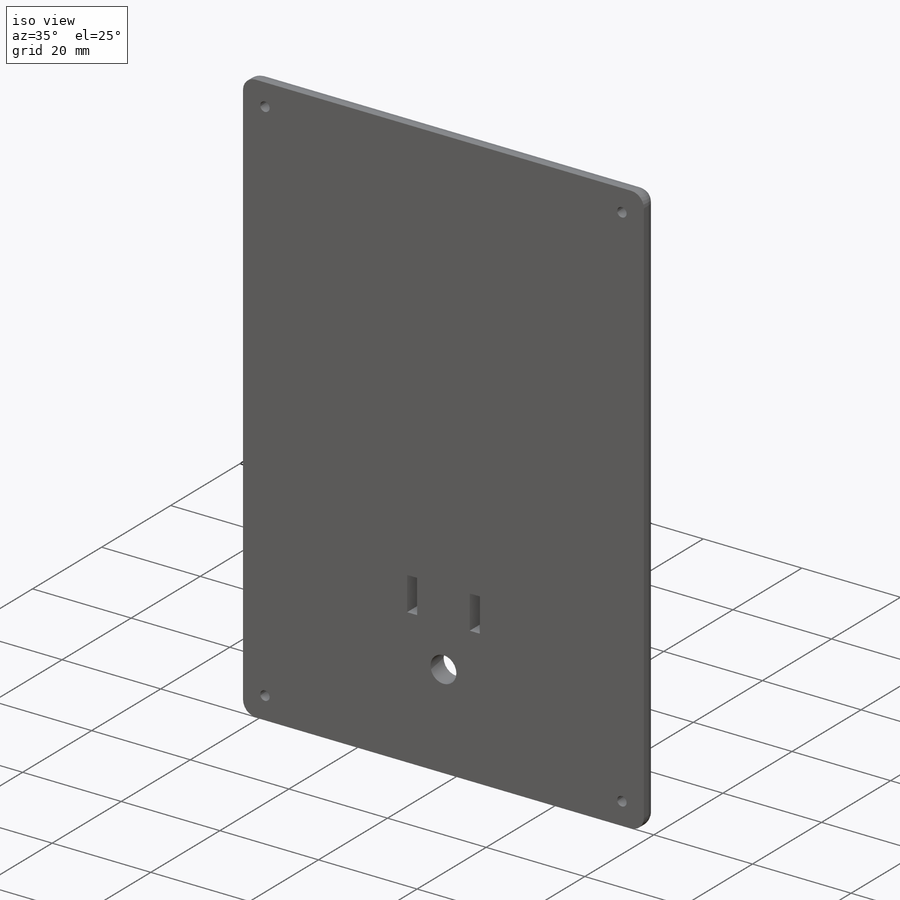
[diagram: iso view]
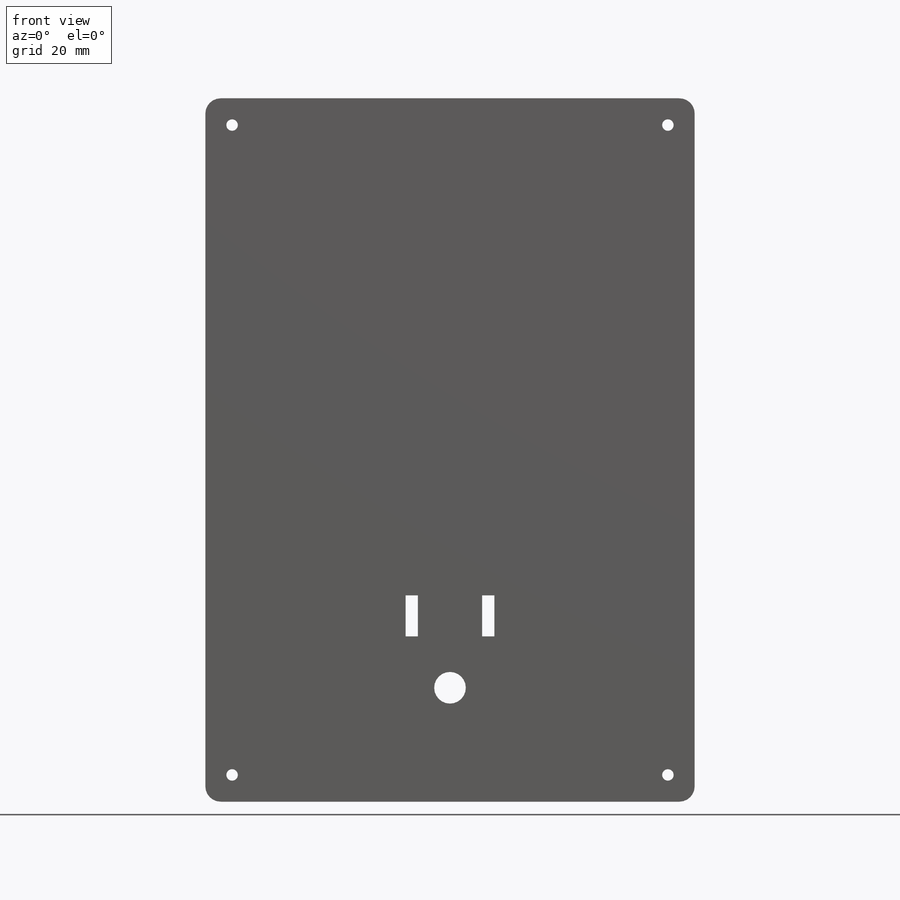
[diagram: front view]
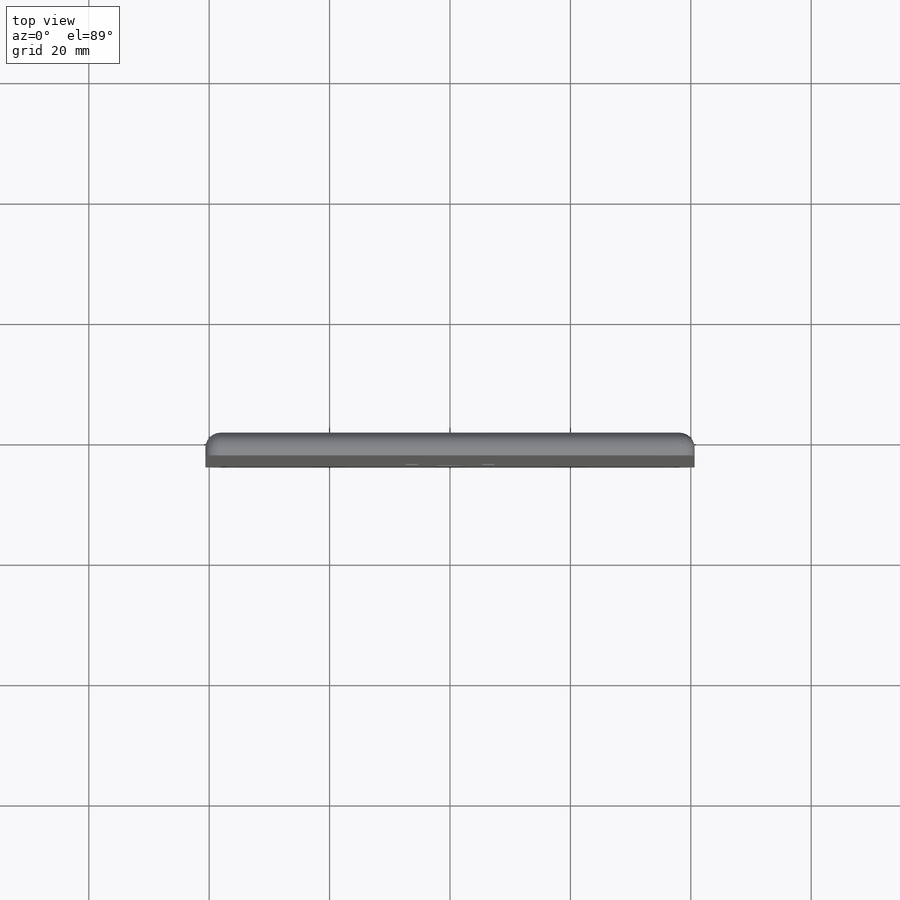
[diagram: top view]
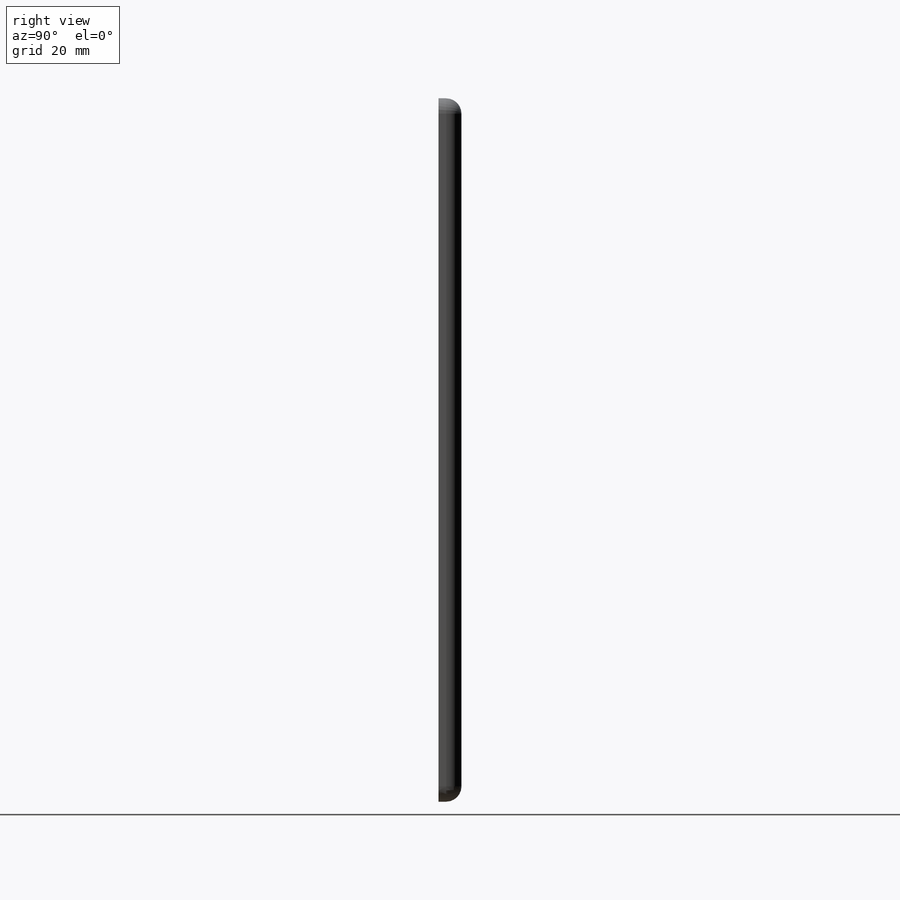
[diagram: right view]
SOLIDWORKS PART (.sldprt)
format: sldprt  version: not decoded by parser v0  size: 398,848 bytes
history: native  units: mm
features: sketch x5, cut_extrude x4, material x1, extrude x1, fillet x1, chamfer x1, plane x1 (+12 scaffold rows collapsed)
feature tree (26):
  scaffold x12  (default folders/planes/origin — collapsed)
  material  "Material <not specified>"
  sketch  "Sketch1"  dims[D1=81.28mm D2=116.84mm D3=10.16mm D4=10.16mm]
  extrude  "Boss-Extrude1"  Depth=3.81mm
  sketch  "Sketch2"
  sketch  "Sketch6"  dims[c1.D4=5.2578mm c1.D6=4.7498mm c1.D1=2.032mm c1.D2=6.8072mm c1.D3=12.7mm c1.D5=11.938mm c2.D6=11.938mm]
  sketch  "Sketch7"  dims[D1=1.905mm]
  cut_extrude  "Cut-Extrude5"  [1 undecoded]
  cut_extrude  "Cut-Extrude6"  [1 undecoded]
  fillet  "Fillet1"  Radius=2.54mm
  chamfer  "Chamfer1"  Distance=0.889mm Angle=45deg
  cut_extrude  "Cut-Extrude7"  Depth=1.27mm
  plane  "Plane1"  Offset=0mm
  sketch  "Sketch10"
  cut_extrude  "Cut-Extrude8"  Depth=1.905mm
decode coverage: 8 of 12 modeling features carry decoded parameters
note: 2 parameter values undecoded
note: suppression state not decoded; provenance and decode notes live in map.json
